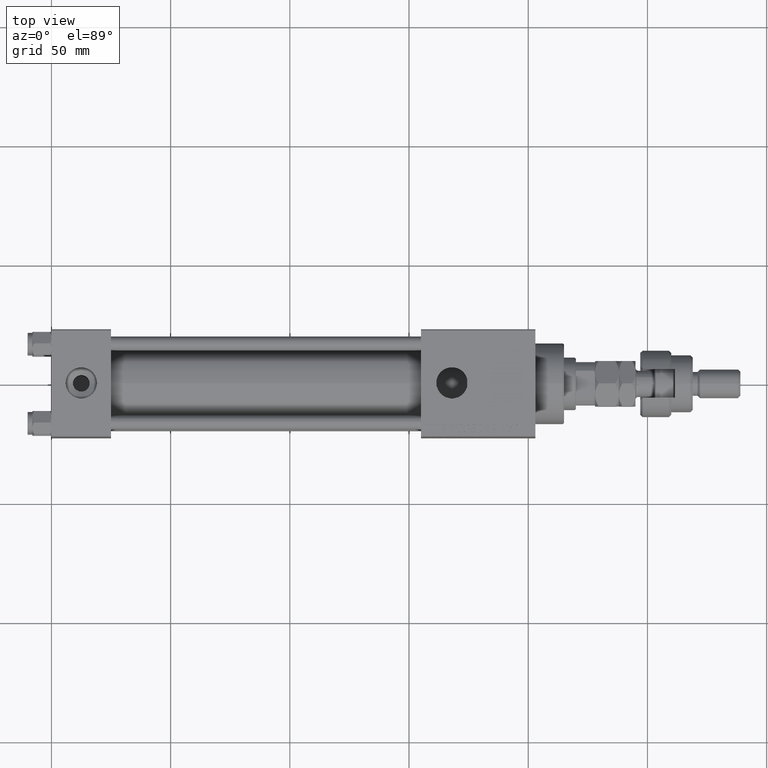
[diagram: clean part render]
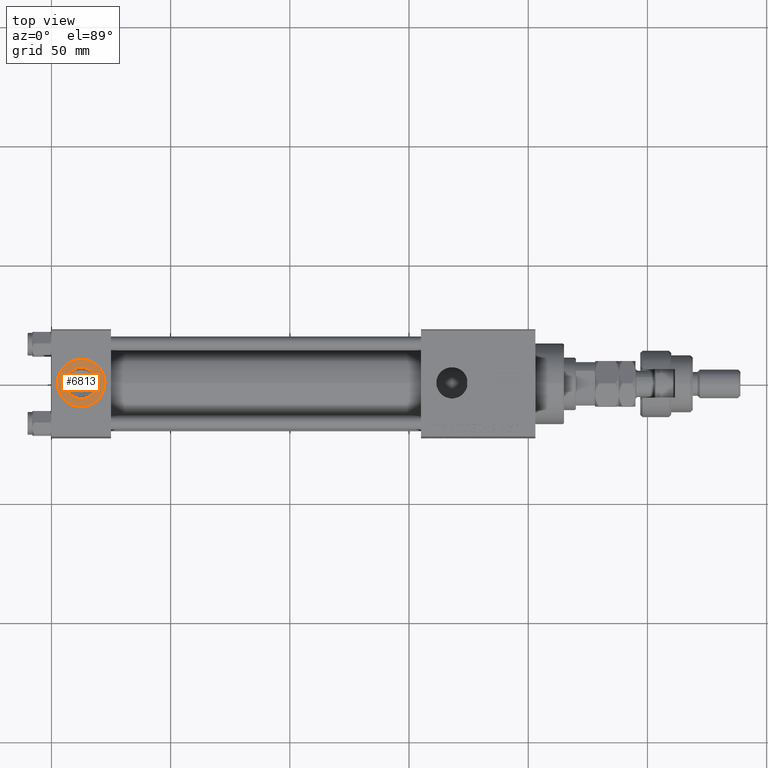
[diagram: same view with one face highlighted and labeled with its STEP entity id]
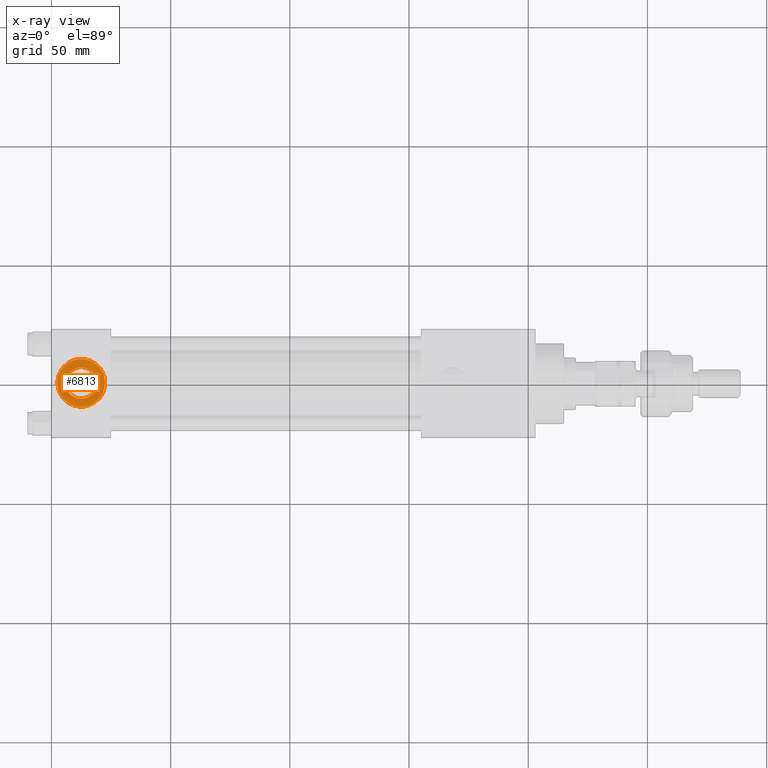
[diagram: x-ray of the same camera — body ghosted, the highlighted face saturated]
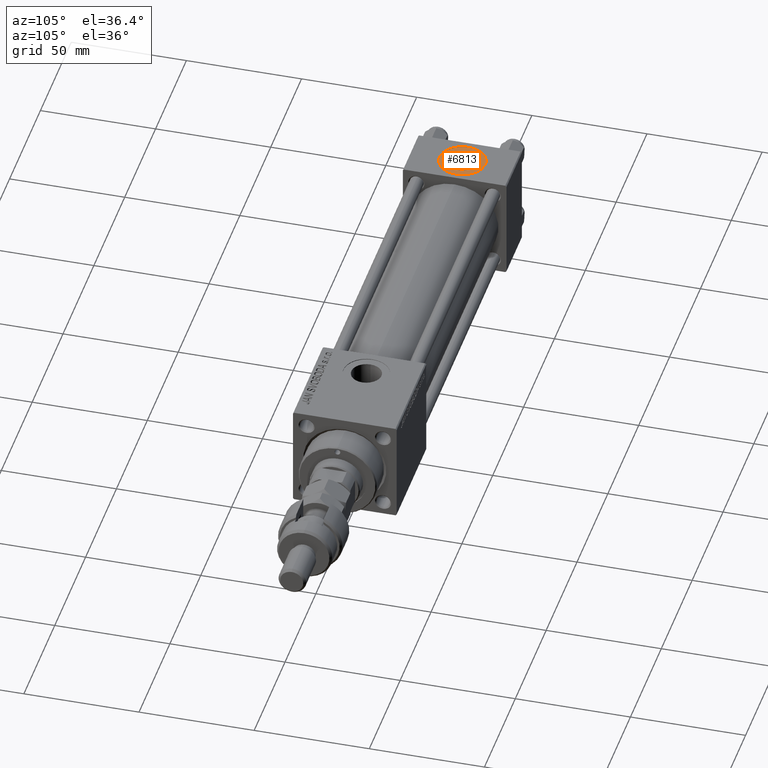
[diagram: same view with one face highlighted and labeled with its STEP entity id]
A machine part, top view. The second image highlights one B-rep face of the part: STEP entity #6813.
The next image is the same camera in x-ray: the body ghosted, the highlighted face saturated — about 0% of this face is hidden behind the body in this view.
A second angle (auxiliary view) of the same face is appended — the face is thin or edge-on in the first view.
In plain terms, the highlighted planar face has unit normal (0, 0, 1).
Its self-contained STEP definition (entity closure, byte-faithful):
#103 = DIRECTION ( 'NONE',  ( 1.000000000000000000, 0.000000000000000000, 0.000000000000000000 ) ) ;
#406 = EDGE_CURVE ( 'NONE', #17346, #15404, #19621, .T. ) ;
#761 = DIRECTION ( 'NONE',  ( 0.000000000000000000, 0.000000000000000000, 1.000000000000000000 ) ) ;
#857 = FACE_BOUND ( 'NONE', #40419, .T. ) ;
#2310 = VERTEX_POINT ( 'NONE', #5448 ) ;
#2920 = DIRECTION ( 'NONE',  ( 1.000000000000000000, 0.000000000000000000, 0.000000000000000000 ) ) ;
#3339 = CARTESIAN_POINT ( 'NONE',  ( 2.500000000000003997, -5.100766768294543310E-16, 22.30000000000000071 ) ) ;
#5448 = CARTESIAN_POINT ( 'NONE',  ( 5.920000000000002593, -9.289058821378490386E-16, 22.30000000000000071 ) ) ;
#5586 = FACE_OUTER_BOUND ( 'NONE', #19082, .T. ) ;
#6813 = ADVANCED_FACE ( 'NONE', ( #857, #5586 ), #22614, .T. ) ;
#8070 = AXIS2_PLACEMENT_3D ( 'NONE', #18739, #52218, #13981 ) ;
#8185 = ORIENTED_EDGE ( 'NONE', *, *, #37969, .F. ) ;
#8201 = DIRECTION ( 'NONE',  ( 0.000000000000000000, 0.000000000000000000, 1.000000000000000000 ) ) ;
#9763 = DIRECTION ( 'NONE',  ( 0.000000000000000000, 0.000000000000000000, 1.000000000000000000 ) ) ;
#11643 = EDGE_CURVE ( 'NONE', #15404, #17346, #18232, .T. ) ;
#13981 = DIRECTION ( 'NONE',  ( 1.000000000000000000, 0.000000000000000000, 0.000000000000000000 ) ) ;
#15404 = VERTEX_POINT ( 'NONE', #3339 ) ;
#15473 = CARTESIAN_POINT ( 'NONE',  ( 12.50000000000000000, -1.734723475976807094E-15, 22.30000000000000071 ) ) ;
#17346 = VERTEX_POINT ( 'NONE', #23708 ) ;
#18150 = CARTESIAN_POINT ( 'NONE',  ( 12.50000000000000000, -1.734723475976807094E-15, 22.30000000000000071 ) ) ;
#18232 = CIRCLE ( 'NONE', #44935, 9.999999999999998224 ) ;
#18739 = CARTESIAN_POINT ( 'NONE',  ( 12.50000000000000000, -1.734723475976807094E-15, 22.30000000000000071 ) ) ;
#19082 = EDGE_LOOP ( 'NONE', ( #24766, #31999 ) ) ;
#19621 = CIRCLE ( 'NONE', #8070, 9.999999999999998224 ) ;
#21321 = CIRCLE ( 'NONE', #46245, 6.579999999999999183 ) ;
#22248 = CARTESIAN_POINT ( 'NONE',  ( 12.50000000000000000, -1.734723475976807094E-15, 22.30000000000000071 ) ) ;
#22402 = AXIS2_PLACEMENT_3D ( 'NONE', #18150, #9763, #30447 ) ;
#22614 = PLANE ( 'NONE',  #22402 ) ;
#23156 = CIRCLE ( 'NONE', #54341, 6.579999999999999183 ) ;
#23708 = CARTESIAN_POINT ( 'NONE',  ( 22.50000000000000000, -1.734723475976807094E-15, 22.30000000000000071 ) ) ;
#24766 = ORIENTED_EDGE ( 'NONE', *, *, #406, .T. ) ;
#25591 = CARTESIAN_POINT ( 'NONE',  ( 19.07999999999999829, -1.734723475976807094E-15, 22.30000000000000071 ) ) ;
#28748 = VERTEX_POINT ( 'NONE', #25591 ) ;
#29421 = CARTESIAN_POINT ( 'NONE',  ( 12.50000000000000000, -1.734723475976807094E-15, 22.30000000000000071 ) ) ;
#30447 = DIRECTION ( 'NONE',  ( 1.000000000000000000, 0.000000000000000000, -0.000000000000000000 ) ) ;
#31999 = ORIENTED_EDGE ( 'NONE', *, *, #11643, .T. ) ;
#33033 = DIRECTION ( 'NONE',  ( 0.000000000000000000, 0.000000000000000000, 1.000000000000000000 ) ) ;
#37969 = EDGE_CURVE ( 'NONE', #2310, #28748, #23156, .T. ) ;
#40419 = EDGE_LOOP ( 'NONE', ( #54437, #8185 ) ) ;
#44935 = AXIS2_PLACEMENT_3D ( 'NONE', #29421, #8201, #103 ) ;
#46245 = AXIS2_PLACEMENT_3D ( 'NONE', #15473, #33033, #2920 ) ;
#49392 = EDGE_CURVE ( 'NONE', #28748, #2310, #21321, .T. ) ;
#51817 = DIRECTION ( 'NONE',  ( 1.000000000000000000, 0.000000000000000000, 0.000000000000000000 ) ) ;
#52218 = DIRECTION ( 'NONE',  ( 0.000000000000000000, 0.000000000000000000, 1.000000000000000000 ) ) ;
#54341 = AXIS2_PLACEMENT_3D ( 'NONE', #22248, #761, #51817 ) ;
#54437 = ORIENTED_EDGE ( 'NONE', *, *, #49392, .F. ) ;